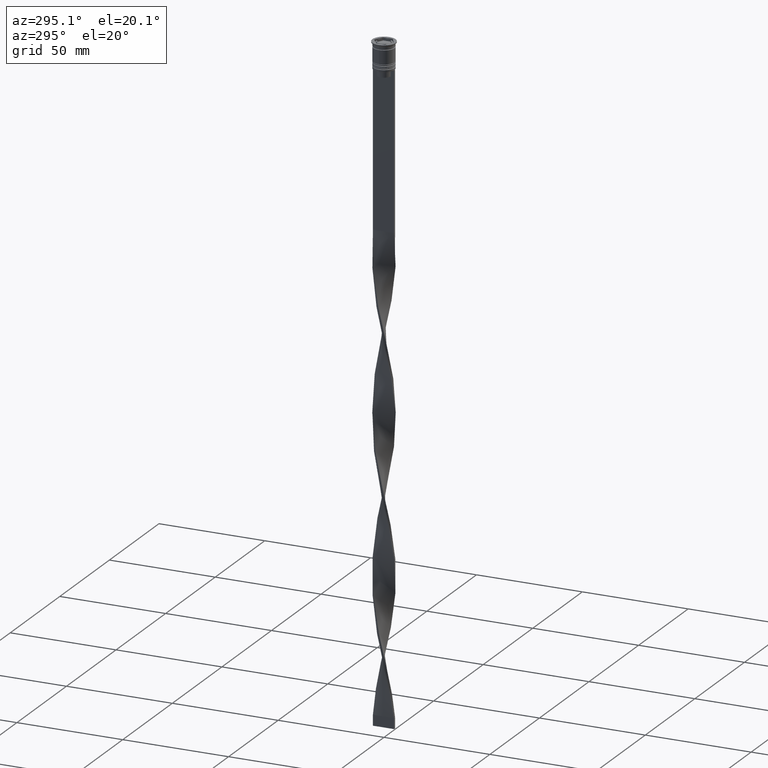
[diagram: clean part render]
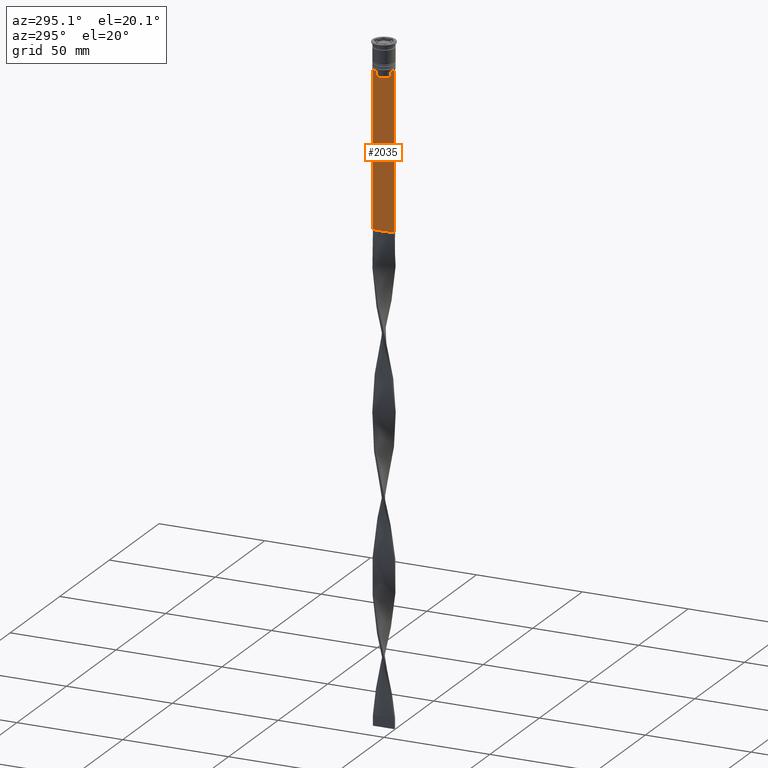
[diagram: same view with one face highlighted and labeled with its STEP entity id]
A machine part, auxiliary view. The second image highlights one B-rep face of the part: STEP entity #2035.
In plain terms, the highlighted planar face has unit normal (-1, 0, 0).
Its self-contained STEP definition (entity closure, byte-faithful):
#69 = DIRECTION ( 'NONE',  ( 0.000000000000000000, -1.000000000000000000, 0.000000000000000000 ) ) ;
#173 = CARTESIAN_POINT ( 'NONE',  ( -0.5000000000000000000, -4.999999999999999112, -86.50000000000000000 ) ) ;
#307 = VECTOR ( 'NONE', #3553, 1000.000000000000000 ) ;
#361 = CARTESIAN_POINT ( 'NONE',  ( -0.5000000000000000000, 5.000000000000000888, -2.450124378879110054 ) ) ;
#386 = LINE ( 'NONE', #2916, #307 ) ;
#396 = CARTESIAN_POINT ( 'NONE',  ( -0.5000000000000000000, -3.363034344160045652, -15.50000000000000000 ) ) ;
#397 = EDGE_CURVE ( 'NONE', #3984, #1397, #573, .T. ) ;
#414 = CARTESIAN_POINT ( 'NONE',  ( -0.5000000000000000000, 3.699657965831574913, -12.66677026074361301 ) ) ;
#514 = ORIENTED_EDGE ( 'NONE', *, *, #2113, .T. ) ;
#536 = VERTEX_POINT ( 'NONE', #2940 ) ;
#573 = B_SPLINE_CURVE_WITH_KNOTS ( 'NONE', 3,
 ( #2921, #414, #1285, #2876 ),
 .UNSPECIFIED., .F., .F.,
 ( 4, 4 ),
 ( 0.006644825462451552783, 0.007355321358912435097 ),
 .UNSPECIFIED. ) ;
#639 = ORIENTED_EDGE ( 'NONE', *, *, #2474, .F. ) ;
#658 = ORIENTED_EDGE ( 'NONE', *, *, #1983, .F. ) ;
#697 = ORIENTED_EDGE ( 'NONE', *, *, #1090, .F. ) ;
#701 = EDGE_LOOP ( 'NONE', ( #2643, #3960, #639, #514, #3104, #765, #1157, #3681, #697, #888, #658, #1478 ) ) ;
#726 = PLANE ( 'NONE',  #2577 ) ;
#747 = LINE ( 'NONE', #361, #3110 ) ;
#765 = ORIENTED_EDGE ( 'NONE', *, *, #2980, .F. ) ;
#806 = CARTESIAN_POINT ( 'NONE',  ( -0.5000000000000000000, 3.363034344160045208, -13.00000000000000178 ) ) ;
#862 = LINE ( 'NONE', #1150, #3306 ) ;
#888 = ORIENTED_EDGE ( 'NONE', *, *, #2196, .F. ) ;
#933 = DIRECTION ( 'NONE',  ( 0.000000000000000000, -1.000000000000000000, 0.000000000000000000 ) ) ;
#980 = VECTOR ( 'NONE', #2879, 1000.000000000000000 ) ;
#991 = EDGE_CURVE ( 'NONE', #1054, #536, #1361, .T. ) ;
#1028 = LINE ( 'NONE', #2686, #1510 ) ;
#1032 = VERTEX_POINT ( 'NONE', #3613 ) ;
#1054 = VERTEX_POINT ( 'NONE', #3018 ) ;
#1090 = EDGE_CURVE ( 'NONE', #1342, #2914, #3408, .T. ) ;
#1150 = CARTESIAN_POINT ( 'NONE',  ( -0.5000000000000000000, -4.999999999999999112, -12.50000000000000000 ) ) ;
#1157 = ORIENTED_EDGE ( 'NONE', *, *, #991, .F. ) ;
#1178 = VERTEX_POINT ( 'NONE', #173 ) ;
#1186 = LINE ( 'NONE', #1243, #2046 ) ;
#1243 = CARTESIAN_POINT ( 'NONE',  ( -0.5000000000000000000, 3.399999999999998135, -15.50000000000000000 ) ) ;
#1255 = LINE ( 'NONE', #2492, #1972 ) ;
#1285 = CARTESIAN_POINT ( 'NONE',  ( -0.5000000000000000000, 3.531412678228260216, -12.83345231756357840 ) ) ;
#1297 = VECTOR ( 'NONE', #69, 1000.000000000000000 ) ;
#1335 = LINE ( 'NONE', #2969, #1722 ) ;
#1338 = DIRECTION ( 'NONE',  ( 0.000000000000000000, 0.000000000000000000, -1.000000000000000000 ) ) ;
#1342 = VERTEX_POINT ( 'NONE', #3427 ) ;
#1361 = LINE ( 'NONE', #1595, #1297 ) ;
#1397 = VERTEX_POINT ( 'NONE', #806 ) ;
#1409 = CARTESIAN_POINT ( 'NONE',  ( -0.5000000000000000000, -3.867815921162742754, -12.50000000000000000 ) ) ;
#1471 = EDGE_CURVE ( 'NONE', #1178, #3686, #1255, .T. ) ;
#1478 = ORIENTED_EDGE ( 'NONE', *, *, #3442, .F. ) ;
#1510 = VECTOR ( 'NONE', #1338, 1000.000000000000000 ) ;
#1595 = CARTESIAN_POINT ( 'NONE',  ( -0.5000000000000000000, -4.999999999999999112, -12.50000000000000000 ) ) ;
#1604 = LINE ( 'NONE', #1624, #980 ) ;
#1624 = CARTESIAN_POINT ( 'NONE',  ( -0.5000000000000000000, -4.999999999999999112, -12.50000000000000000 ) ) ;
#1637 = CARTESIAN_POINT ( 'NONE',  ( -0.5000000000000000000, -4.999999999999999112, -2.450124378879110054 ) ) ;
#1722 = VECTOR ( 'NONE', #3544, 1000.000000000000000 ) ;
#1781 = EDGE_CURVE ( 'NONE', #2914, #1054, #862, .T. ) ;
#1972 = VECTOR ( 'NONE', #2537, 1000.000000000000000 ) ;
#1983 = EDGE_CURVE ( 'NONE', #1032, #3183, #1186, .T. ) ;
#2035 = ADVANCED_FACE ( 'NONE', ( #3580 ), #726, .T. ) ;
#2046 = VECTOR ( 'NONE', #933, 1000.000000000000000 ) ;
#2050 = LINE ( 'NONE', #2089, #3844 ) ;
#2089 = CARTESIAN_POINT ( 'NONE',  ( -0.5000000000000000000, 3.363034344160045208, 0.000000000000000000 ) ) ;
#2113 = EDGE_CURVE ( 'NONE', #2268, #3686, #747, .T. ) ;
#2196 = EDGE_CURVE ( 'NONE', #3183, #1342, #386, .T. ) ;
#2268 = VERTEX_POINT ( 'NONE', #2671 ) ;
#2474 = EDGE_CURVE ( 'NONE', #2268, #2730, #1604, .T. ) ;
#2492 = CARTESIAN_POINT ( 'NONE',  ( -0.5000000000000000000, -4.999999999999999112, -86.50000000000000000 ) ) ;
#2537 = DIRECTION ( 'NONE',  ( 0.000000000000000000, 1.000000000000000000, 0.000000000000000000 ) ) ;
#2577 = AXIS2_PLACEMENT_3D ( 'NONE', #1637, #3534, #2624 ) ;
#2603 = DIRECTION ( 'NONE',  ( 0.000000000000000000, 0.000000000000000000, -1.000000000000000000 ) ) ;
#2624 = DIRECTION ( 'NONE',  ( 0.000000000000000000, 0.000000000000000000, 1.000000000000000000 ) ) ;
#2643 = ORIENTED_EDGE ( 'NONE', *, *, #397, .F. ) ;
#2671 = CARTESIAN_POINT ( 'NONE',  ( -0.5000000000000000000, 5.000000000000000888, -12.50000000000000000 ) ) ;
#2686 = CARTESIAN_POINT ( 'NONE',  ( -0.5000000000000000000, -4.999999999999999112, -2.450124378879110054 ) ) ;
#2730 = VERTEX_POINT ( 'NONE', #3757 ) ;
#2876 = CARTESIAN_POINT ( 'NONE',  ( -0.5000000000000000000, 3.363034344160045208, -13.00000000000000178 ) ) ;
#2879 = DIRECTION ( 'NONE',  ( 0.000000000000000000, -1.000000000000000000, 0.000000000000000000 ) ) ;
#2914 = VERTEX_POINT ( 'NONE', #3547 ) ;
#2916 = CARTESIAN_POINT ( 'NONE',  ( -0.5000000000000000000, -3.363034344160045208, 0.000000000000000000 ) ) ;
#2921 = CARTESIAN_POINT ( 'NONE',  ( -0.5000000000000000000, 3.867815921162742754, -12.50000000000000000 ) ) ;
#2940 = CARTESIAN_POINT ( 'NONE',  ( -0.5000000000000000000, -4.999999999999999112, -12.50000000000000000 ) ) ;
#2954 = CARTESIAN_POINT ( 'NONE',  ( -0.5000000000000000000, -3.531412985305424801, -12.83345201382502765 ) ) ;
#2969 = CARTESIAN_POINT ( 'NONE',  ( -0.5000000000000000000, -4.999999999999999112, -12.50000000000000000 ) ) ;
#2980 = EDGE_CURVE ( 'NONE', #536, #1178, #1028, .T. ) ;
#2994 = DIRECTION ( 'NONE',  ( 0.000000000000000000, 0.000000000000000000, -1.000000000000000000 ) ) ;
#3018 = CARTESIAN_POINT ( 'NONE',  ( -0.5000000000000000000, -4.874423042781575788, -12.50000000000000000 ) ) ;
#3104 = ORIENTED_EDGE ( 'NONE', *, *, #1471, .F. ) ;
#3110 = VECTOR ( 'NONE', #2603, 1000.000000000000000 ) ;
#3183 = VERTEX_POINT ( 'NONE', #396 ) ;
#3235 = EDGE_CURVE ( 'NONE', #2730, #3984, #1335, .T. ) ;
#3267 = CARTESIAN_POINT ( 'NONE',  ( -0.5000000000000000000, -3.699658232838647365, -12.66676999593996555 ) ) ;
#3306 = VECTOR ( 'NONE', #3342, 1000.000000000000000 ) ;
#3342 = DIRECTION ( 'NONE',  ( 0.000000000000000000, -1.000000000000000000, 0.000000000000000000 ) ) ;
#3408 = B_SPLINE_CURVE_WITH_KNOTS ( 'NONE', 3,
 ( #3636, #2954, #3267, #1409 ),
 .UNSPECIFIED., .F., .F.,
 ( 4, 4 ),
 ( 0.01632394437298965648, 0.01703543518243618576 ),
 .UNSPECIFIED. ) ;
#3426 = CARTESIAN_POINT ( 'NONE',  ( -0.5000000000000000000, 3.867815921162742754, -12.50000000000000000 ) ) ;
#3427 = CARTESIAN_POINT ( 'NONE',  ( -0.5000000000000000000, -3.363034344160045208, -13.00000000000000178 ) ) ;
#3442 = EDGE_CURVE ( 'NONE', #1397, #1032, #2050, .T. ) ;
#3497 = CARTESIAN_POINT ( 'NONE',  ( -0.5000000000000000000, 5.000000000000000888, -86.50000000000000000 ) ) ;
#3534 = DIRECTION ( 'NONE',  ( -1.000000000000000000, 0.000000000000000000, 0.000000000000000000 ) ) ;
#3544 = DIRECTION ( 'NONE',  ( 0.000000000000000000, -1.000000000000000000, 0.000000000000000000 ) ) ;
#3547 = CARTESIAN_POINT ( 'NONE',  ( -0.5000000000000000000, -3.867815921162742754, -12.50000000000000000 ) ) ;
#3553 = DIRECTION ( 'NONE',  ( -0.000000000000000000, -0.000000000000000000, 1.000000000000000000 ) ) ;
#3580 = FACE_OUTER_BOUND ( 'NONE', #701, .T. ) ;
#3613 = CARTESIAN_POINT ( 'NONE',  ( -0.5000000000000000000, 3.363034344160045652, -15.50000000000000000 ) ) ;
#3636 = CARTESIAN_POINT ( 'NONE',  ( -0.5000000000000000000, -3.363034344160045208, -13.00000000000000178 ) ) ;
#3681 = ORIENTED_EDGE ( 'NONE', *, *, #1781, .F. ) ;
#3686 = VERTEX_POINT ( 'NONE', #3497 ) ;
#3757 = CARTESIAN_POINT ( 'NONE',  ( -0.5000000000000000000, 4.874423042781575788, -12.50000000000000000 ) ) ;
#3844 = VECTOR ( 'NONE', #2994, 1000.000000000000000 ) ;
#3960 = ORIENTED_EDGE ( 'NONE', *, *, #3235, .F. ) ;
#3984 = VERTEX_POINT ( 'NONE', #3426 ) ;